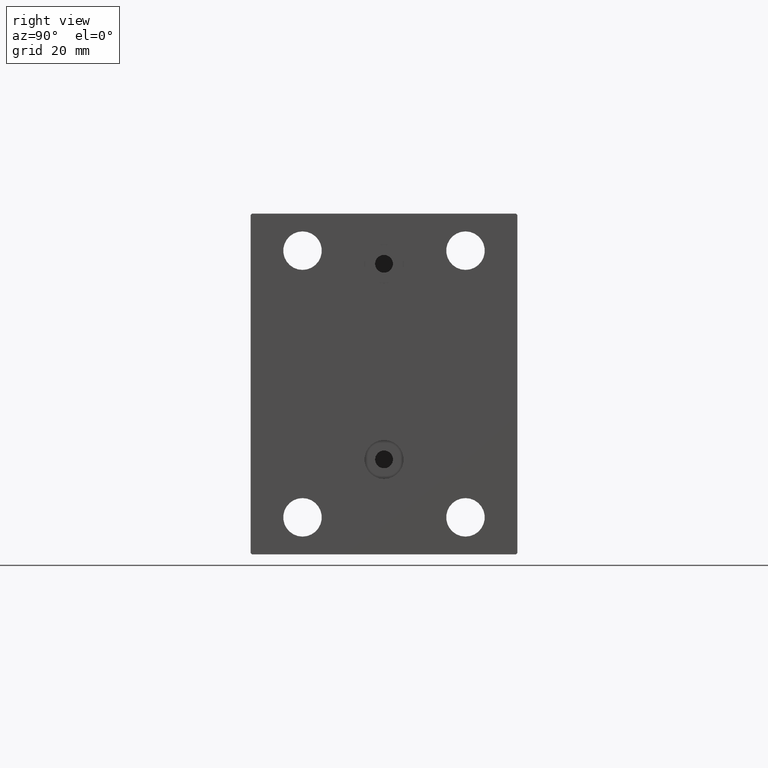
[diagram: clean part render]
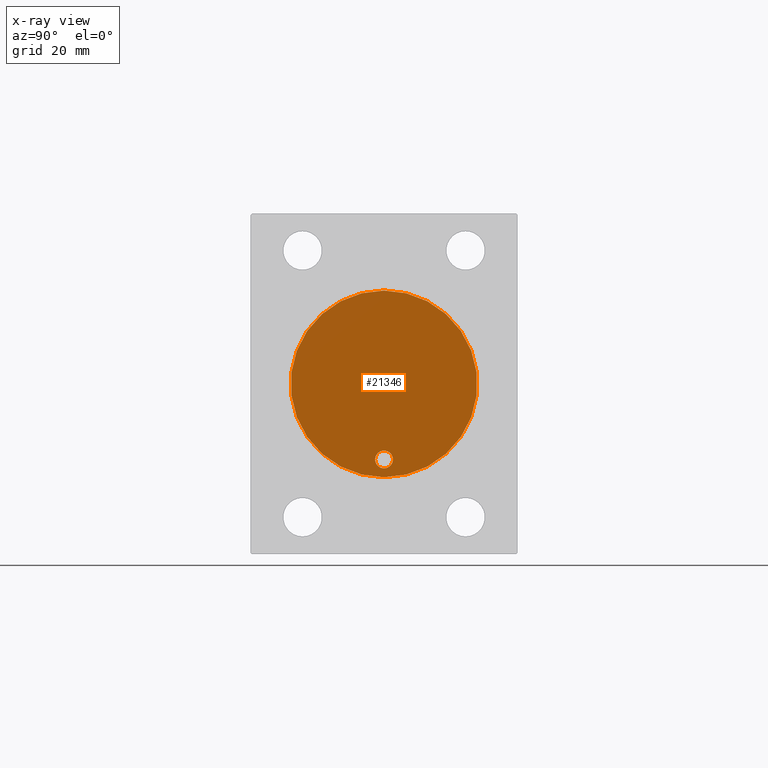
[diagram: x-ray — body ghosted, one internal face saturated and labeled with its STEP entity id]
A machine part, right view, then the same camera in x-ray: the body is ghosted and one INTERNAL B-rep face — a face not visible from any outside direction — is saturated and labeled: STEP entity #21346.
In plain terms, the highlighted planar face has unit normal (-1, 0, 0).
Its self-contained STEP definition (entity closure, byte-faithful):
#1429 = CARTESIAN_POINT ( 'NONE',  ( 51.00000000000000000, 0.000000000000000000, 0.000000000000000000 ) ) ;
#2489 = VERTEX_POINT ( 'NONE', #37101 ) ;
#2666 = VERTEX_POINT ( 'NONE', #39222 ) ;
#2877 = VERTEX_POINT ( 'NONE', #39688 ) ;
#7758 = CIRCLE ( 'NONE', #11526, 3.000000000000002665 ) ;
#8473 = EDGE_LOOP ( 'NONE', ( #44403, #35232 ) ) ;
#8998 = ORIENTED_EDGE ( 'NONE', *, *, #26423, .T. ) ;
#10503 = EDGE_CURVE ( 'NONE', #2489, #39553, #41991, .T. ) ;
#11526 = AXIS2_PLACEMENT_3D ( 'NONE', #20938, #21172, #14575 ) ;
#11956 = CARTESIAN_POINT ( 'NONE',  ( 51.00000000000000000, 0.000000000000000000, 0.000000000000000000 ) ) ;
#13041 = DIRECTION ( 'NONE',  ( 0.000000000000000000, 0.000000000000000000, 1.000000000000000000 ) ) ;
#14575 = DIRECTION ( 'NONE',  ( 0.000000000000000000, 0.000000000000000000, 1.000000000000000000 ) ) ;
#15713 = DIRECTION ( 'NONE',  ( -1.000000000000000000, 0.000000000000000000, 0.000000000000000000 ) ) ;
#15786 = EDGE_LOOP ( 'NONE', ( #8998, #36606 ) ) ;
#18327 = DIRECTION ( 'NONE',  ( 0.000000000000000000, 0.000000000000000000, 1.000000000000000000 ) ) ;
#20121 = DIRECTION ( 'NONE',  ( 0.000000000000000000, 0.000000000000000000, 1.000000000000000000 ) ) ;
#20829 = DIRECTION ( 'NONE',  ( -1.000000000000000000, 0.000000000000000000, 0.000000000000000000 ) ) ;
#20938 = CARTESIAN_POINT ( 'NONE',  ( 51.00000000000000000, 3.122849337825749828E-15, -25.49999999999999645 ) ) ;
#21057 = AXIS2_PLACEMENT_3D ( 'NONE', #30249, #33781, #13041 ) ;
#21172 = DIRECTION ( 'NONE',  ( -1.000000000000000000, 0.000000000000000000, 0.000000000000000000 ) ) ;
#21346 = ADVANCED_FACE ( 'NONE', ( #38033, #41592 ), #34486, .T. ) ;
#21640 = AXIS2_PLACEMENT_3D ( 'NONE', #42089, #20829, #20121 ) ;
#23903 = CARTESIAN_POINT ( 'NONE',  ( 51.00000000000000000, 3.122849337825749828E-15, -28.49999999999999645 ) ) ;
#26407 = DIRECTION ( 'NONE',  ( -1.000000000000000000, 0.000000000000000000, 0.000000000000000000 ) ) ;
#26423 = EDGE_CURVE ( 'NONE', #2877, #2666, #42185, .T. ) ;
#30093 = AXIS2_PLACEMENT_3D ( 'NONE', #1429, #26407, #30635 ) ;
#30249 = CARTESIAN_POINT ( 'NONE',  ( 51.00000000000000000, 0.000000000000000000, 0.000000000000000000 ) ) ;
#30635 = DIRECTION ( 'NONE',  ( 0.000000000000000000, 0.000000000000000000, 1.000000000000000000 ) ) ;
#33781 = DIRECTION ( 'NONE',  ( -1.000000000000000000, 0.000000000000000000, 0.000000000000000000 ) ) ;
#34486 = PLANE ( 'NONE',  #21057 ) ;
#35232 = ORIENTED_EDGE ( 'NONE', *, *, #10503, .F. ) ;
#36606 = ORIENTED_EDGE ( 'NONE', *, *, #38482, .T. ) ;
#37101 = CARTESIAN_POINT ( 'NONE',  ( 51.00000000000000000, 3.490243377569955667E-15, -22.49999999999999289 ) ) ;
#38033 = FACE_BOUND ( 'NONE', #8473, .T. ) ;
#38327 = EDGE_CURVE ( 'NONE', #39553, #2489, #7758, .T. ) ;
#38482 = EDGE_CURVE ( 'NONE', #2666, #2877, #38630, .T. ) ;
#38630 = CIRCLE ( 'NONE', #43167, 31.50000000000000000 ) ;
#39222 = CARTESIAN_POINT ( 'NONE',  ( 51.00000000000000000, 3.857637417314162689E-15, -31.50000000000000000 ) ) ;
#39553 = VERTEX_POINT ( 'NONE', #23903 ) ;
#39688 = CARTESIAN_POINT ( 'NONE',  ( 51.00000000000000000, 0.000000000000000000, 31.50000000000000000 ) ) ;
#41592 = FACE_OUTER_BOUND ( 'NONE', #15786, .T. ) ;
#41991 = CIRCLE ( 'NONE', #21640, 3.000000000000002665 ) ;
#42089 = CARTESIAN_POINT ( 'NONE',  ( 51.00000000000000000, 3.122849337825749828E-15, -25.49999999999999645 ) ) ;
#42185 = CIRCLE ( 'NONE', #30093, 31.50000000000000000 ) ;
#43167 = AXIS2_PLACEMENT_3D ( 'NONE', #11956, #15713, #18327 ) ;
#44403 = ORIENTED_EDGE ( 'NONE', *, *, #38327, .F. ) ;